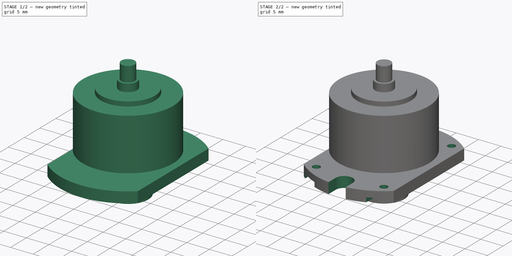
[diagram: build sequence overview — one tinted view per stage of 2, left to right]
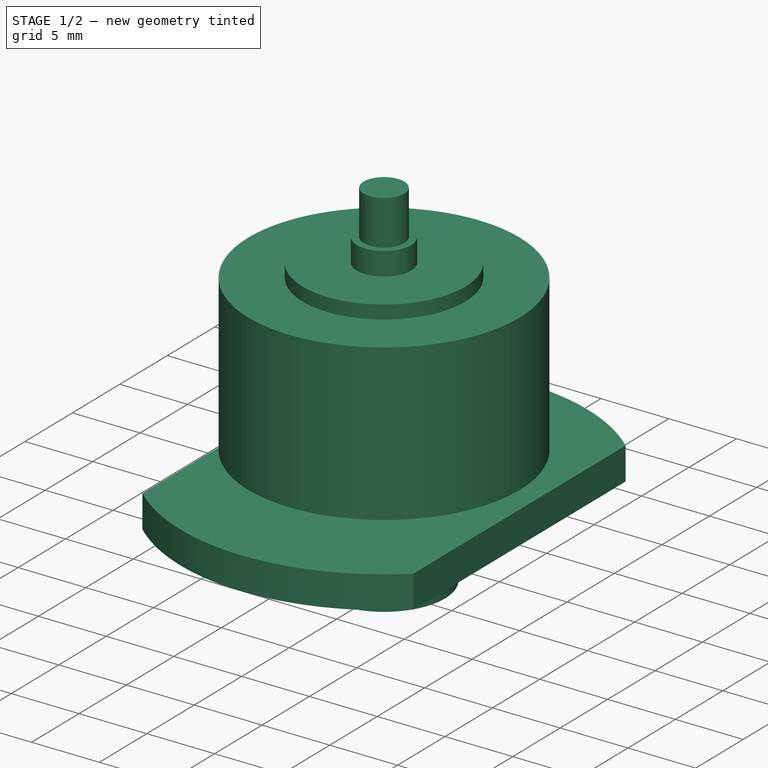
[diagram: stage 1 of 2 — iso view after this stage's code; geometry added in this stage tinted green]
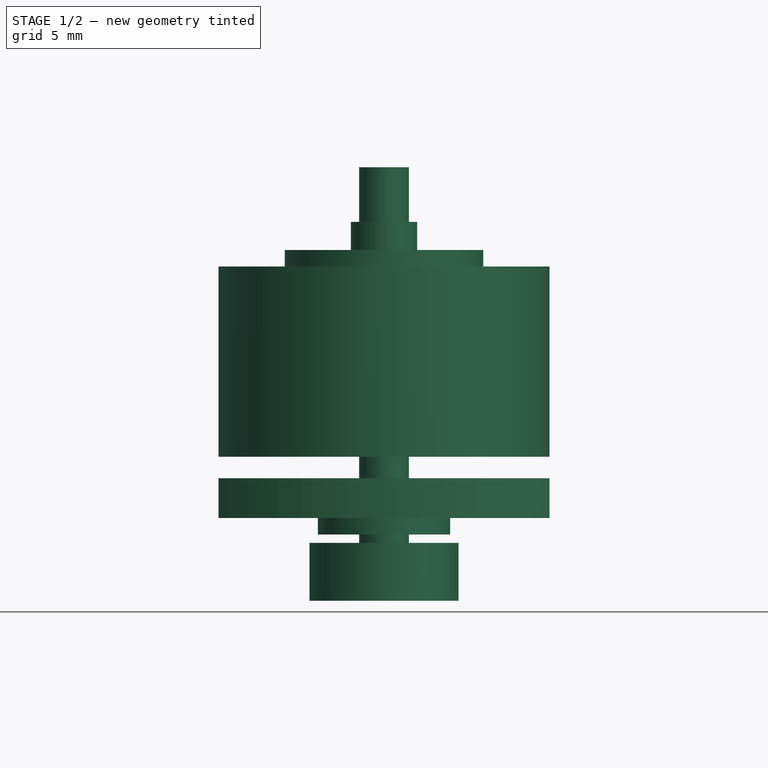
[diagram: stage 1 of 2 — front view after this stage's code; geometry added in this stage tinted green]
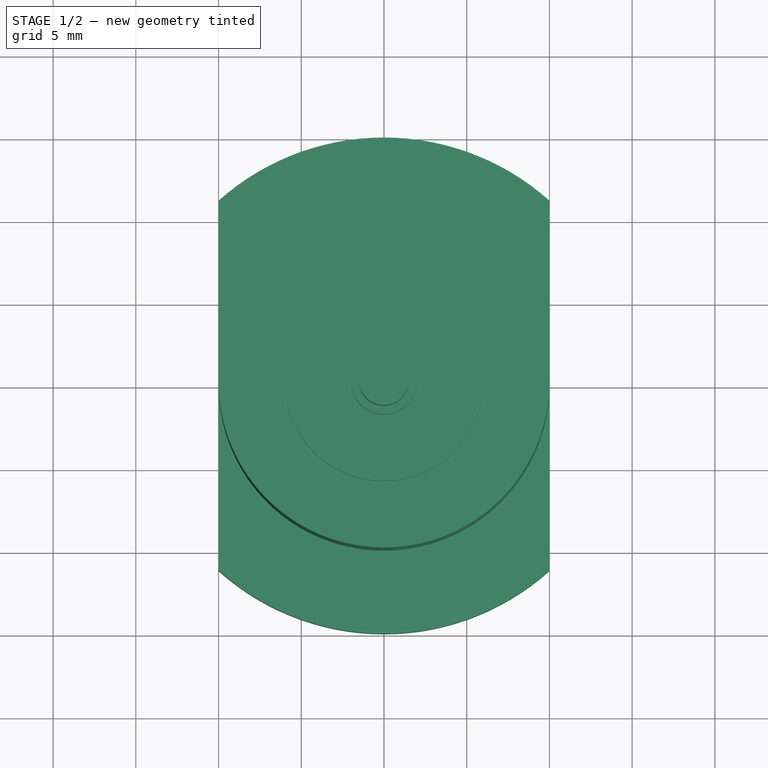
[diagram: stage 1 of 2 — top view after this stage's code; geometry added in this stage tinted green]
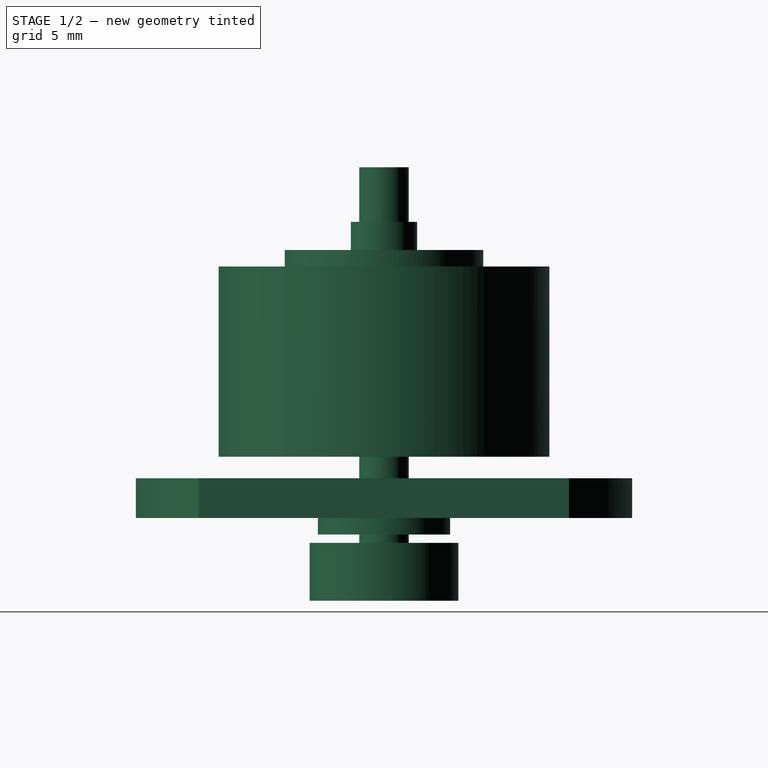
[diagram: stage 1 of 2 — right view after this stage's code; geometry added in this stage tinted green]
FCSTD DOCUMENT  (FreeCAD 0.20R26155 (Git))
Label: BLDC_aliexpress_1
License: All rights reserved
LicenseURL: http://en.wikipedia.org/wiki/All_rights_reserved
objects: Sketcher::SketchObject×4, PartDesign::Pocket×3, PartDesign::Revolution×1, PartDesign::Body×1
note: 13 computed .brp shape members not serialized (recipe doc carries the construction recipe); baked Part::Feature solids carry a one-line shape summary decoded from their .brp

FEATURE [Sketcher::SketchObject] Sketch
  FullyConstrained = true
  MapMode = 5
  Placement = pos=(0,0,0) rot=(1,0,0;1.5708rad)
  Support = -> [XZ_Plane]
  sketch-geometry (20):
    g0: LineSegment StartX=0 StartY=0 StartZ=0 EndX=4.5 EndY=0 EndZ=0
    g1: LineSegment StartX=4.5 StartY=0 StartZ=0 EndX=4.5 EndY=3.5 EndZ=0
    g2: LineSegment StartX=4.5 StartY=3.5 StartZ=0 EndX=1.5 EndY=3.5 EndZ=0
    g3: LineSegment StartX=1.5 StartY=3.5 StartZ=0 EndX=1.5 EndY=4 EndZ=0
    g4: LineSegment StartX=1.5 StartY=4 StartZ=0 EndX=4 EndY=4 EndZ=0
    g5: LineSegment StartX=4 StartY=4 StartZ=0 EndX=4 EndY=5 EndZ=0
    g6: LineSegment StartX=4 StartY=5 StartZ=0 EndX=15 EndY=5 EndZ=0
    g7: LineSegment StartX=15 StartY=5 StartZ=0 EndX=15 EndY=7.4 EndZ=0
    g8: LineSegment StartX=15 StartY=7.4 StartZ=0 EndX=1.5 EndY=7.4 EndZ=0
    g9: LineSegment StartX=1.5 StartY=7.4 StartZ=0 EndX=1.5 EndY=8.7 EndZ=0
    g10: LineSegment StartX=1.5 StartY=8.7 StartZ=0 EndX=10 EndY=8.7 EndZ=0
    g11: LineSegment StartX=10 StartY=8.7 StartZ=0 EndX=10 EndY=20.2 EndZ=0
    g12: LineSegment StartX=10 StartY=20.2 StartZ=0 EndX=6 EndY=20.2 EndZ=0
    g13: LineSegment StartX=6 StartY=20.2 StartZ=0 EndX=6 EndY=21.2 EndZ=0
    g14: LineSegment StartX=6 StartY=21.2 StartZ=0 EndX=2 EndY=21.2 EndZ=0
    g15: LineSegment StartX=2 StartY=21.2 StartZ=0 EndX=2 EndY=22.9 EndZ=0
    g16: LineSegment StartX=2 StartY=22.9 StartZ=0 EndX=1.5 EndY=22.9 EndZ=0
    g17: LineSegment StartX=1.5 StartY=22.9 StartZ=0 EndX=1.5 EndY=26.2 EndZ=0
    g18: LineSegment StartX=0 StartY=26.2 StartZ=0 EndX=1.5 EndY=26.2 EndZ=0
    g19: LineSegment StartX=0 StartY=26.2 StartZ=0 EndX=0 EndY=0 EndZ=0
  constraints (59):
    c: Coincident(g0,g-1)
    c: PointOnObject(g0,g-1)
    c: DistanceX(g0,g0) = 4.5
    c: Coincident(g1,g0)
    c: Vertical(g1)
    c: Coincident(g2,g1)
    c: Horizontal(g2)
    c: DistanceY(g1,g1) = 3.5
    c: DistanceX(g0,g2) = 1.5
    c: Coincident(g3,g2)
    c: Vertical(g3)
    c: Coincident(g4,g3)
    c: Horizontal(g4)
    c: Coincident(g5,g4)
    c: Vertical(g5)
    c: Coincident(g6,g5)
    c: Horizontal(g6)
    c: DistanceY(g0,g5) = 5
    c: DistanceX(g0,g4) = 4
    c: DistanceX(g0,g6) = 15
    c: DistanceY(g3,g3) = 0.5
    c: Coincident(g7,g6)
    c: Vertical(g7)
    c: Coincident(g8,g7)
    c: Horizontal(g8)
    c: Coincident(g9,g8)
    c: Vertical(g9)
    c: Coincident(g10,g9)
    c: Horizontal(g10)
    c: DistanceY(g7,g7) = 2.4
    c: DistanceX(g0,g8) = 1.5
    c: DistanceX(g0,g10) = 10
    c: Coincident(g11,g10)
    c: Vertical(g11)
    c: Coincident(g12,g11)
    c: Horizontal(g12)
    c: Coincident(g13,g12)
    c: Vertical(g13)
    c: Coincident(g14,g13)
    c: Horizontal(g14)
    c: Coincident(g15,g14)
    c: Vertical(g15)
    c: Coincident(g16,g15)
    c: Horizontal(g16)
    c: Coincident(g17,g16)
    c: Vertical(g17)
    c: PointOnObject(g18,g-2)
    c: Coincident(g18,g17)
    c: Horizontal(g18)
    c: DistanceY(g11,g11) = 11.5
    c: DistanceX(g18,g18) = 1.5
    c: DistanceX(g18,g15) = 2
    c: DistanceX(g18,g13) = 6
    c: DistanceY(g0,g18) = 26.2
    c: DistanceY(g17,g17) = 3.3
    c: DistanceY(g14,g17) = 5
    c: DistanceY(g13,g13) = 1
    c: Coincident(g19,g18)
    c: Coincident(g19,g0)
FEATURE [PartDesign::Revolution] Revolution
  Angle = 360
  Axis = (0,2e-16,1)
  Base = (0,0,0)
  Placement = pos=(0,0,0) rot=(1,0,0;1.5708rad)
  Profile = -> Sketch
  ReferenceAxis = -> Sketch [V_Axis]
  Reversed = true
FEATURE [Sketcher::SketchObject] Sketch001
  FullyConstrained = false
  MapMode = 5
  Placement = pos=(0,4.9e-15,7.4) rot=(0,0,1;3.14159rad)
  Support = -> [Revolution]
  sketch-geometry (10):
    g0: LineSegment StartX=-24.8303 StartY=18.1956 StartZ=0 EndX=-10 EndY=18.1956 EndZ=0
    g1: LineSegment StartX=-10 StartY=18.1956 StartZ=0 EndX=-10 EndY=-19.6989 EndZ=0
    g2: LineSegment StartX=-10 StartY=-19.6989 StartZ=0 EndX=-24.8303 EndY=-19.6989 EndZ=0
    g3: LineSegment StartX=-24.8303 StartY=-19.6989 StartZ=0 EndX=-24.8303 EndY=18.1956 EndZ=0
    g4: LineSegment StartX=21.332 StartY=18.1956 StartZ=0 EndX=10 EndY=18.1956 EndZ=0
    g5: LineSegment StartX=10 StartY=18.1956 StartZ=0 EndX=10 EndY=-19.9285 EndZ=0
    g6: LineSegment StartX=10 StartY=-19.9285 StartZ=0 EndX=21.332 EndY=-19.9285 EndZ=0
    g7: LineSegment StartX=21.332 StartY=-19.9285 StartZ=0 EndX=21.332 EndY=18.1956 EndZ=0
    g8: LineSegment StartX=-10 StartY=18.1956 StartZ=0 EndX=10 EndY=18.1956 EndZ=0
    g9: GeomPoint X=0 Y=18.1956 Z=0
  constraints (22):
    c: Coincident(g0,g1)
    c: Coincident(g1,g2)
    c: Coincident(g2,g3)
    c: Coincident(g3,g0)
    c: Horizontal(g0)
    c: Horizontal(g2)
    c: Vertical(g1)
    c: Vertical(g3)
    c: Coincident(g4,g5)
    c: Coincident(g5,g6)
    c: Coincident(g6,g7)
    c: Coincident(g7,g4)
    c: Horizontal(g4)
    c: Horizontal(g6)
    c: Vertical(g5)
    c: Vertical(g7)
    c: DistanceX(g0,g4) = 20
    c: Coincident(g8,g0)
    c: Coincident(g8,g4)
    c: Horizontal(g8)
    c: Symmetric(g8,g8,g9)
    c: PointOnObject(g9,g-2)
FEATURE [PartDesign::Pocket] Pocket
  BaseFeature = -> Revolution
  Length = 5
  Length2 = 100
  Placement = pos=(0,0,0) rot=(1,0,0;1.5708rad)
  Profile = -> Sketch001
  Type = 1
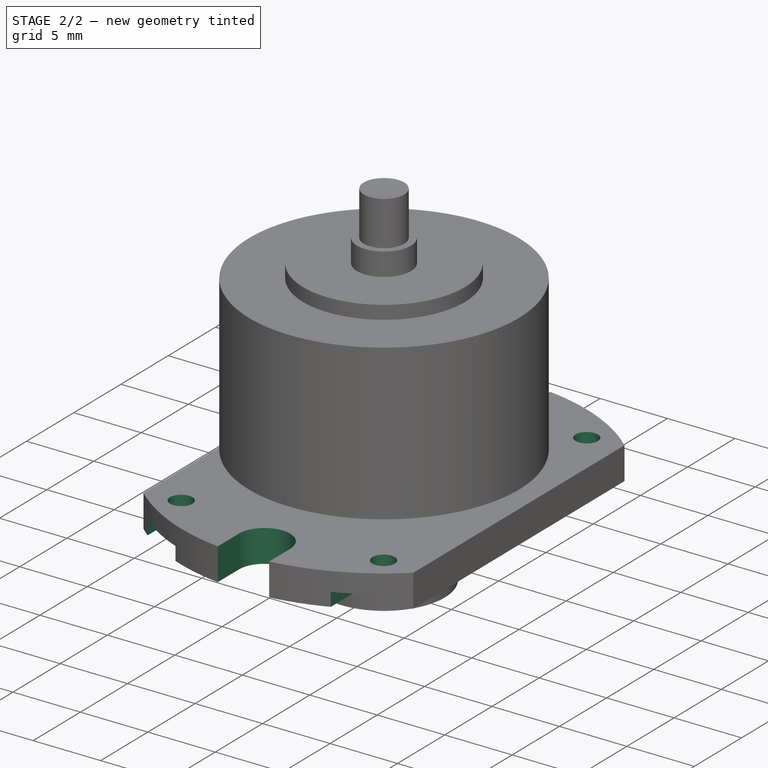
[diagram: stage 2 of 2 — iso view after this stage's code; geometry added in this stage tinted green]
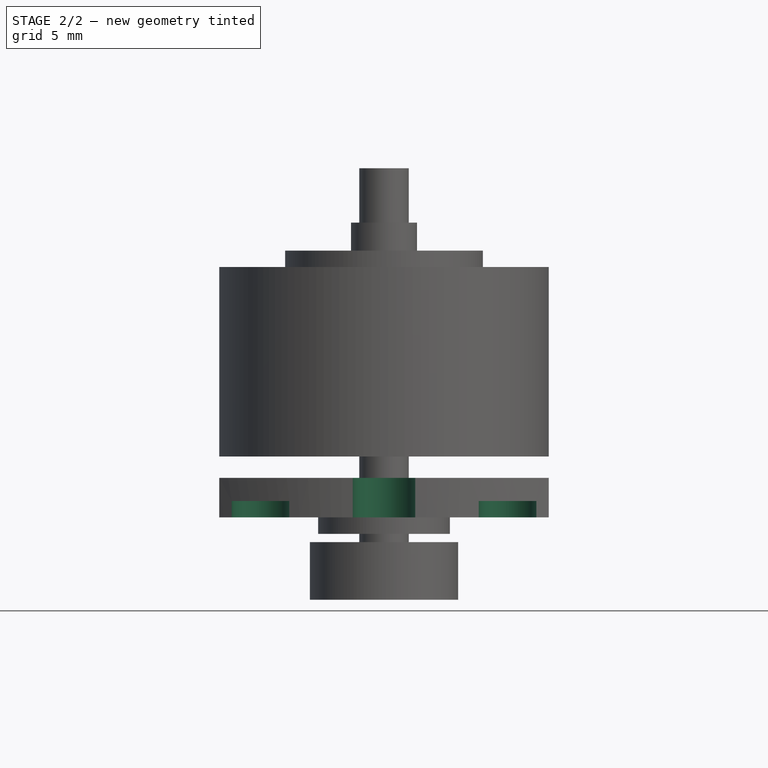
[diagram: stage 2 of 2 — front view after this stage's code; geometry added in this stage tinted green]
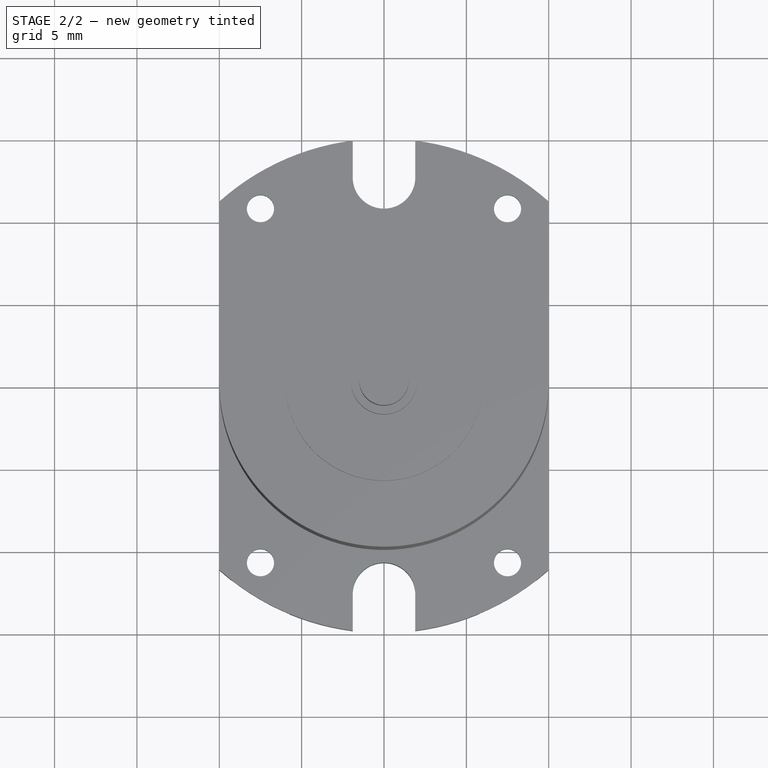
[diagram: stage 2 of 2 — top view after this stage's code; geometry added in this stage tinted green]
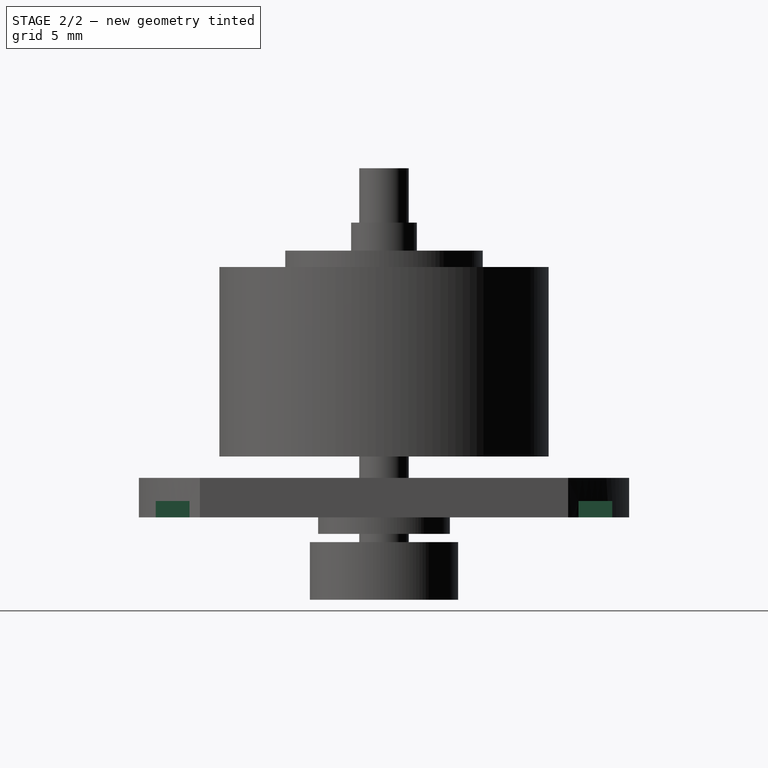
[diagram: stage 2 of 2 — right view after this stage's code; geometry added in this stage tinted green]
FEATURE [Sketcher::SketchObject] Sketch002
  FullyConstrained = false
  MapMode = 5
  Placement = pos=(0,8.2e-15,7.4) rot=(0,0,1;3.14159rad)
  Support = -> [Pocket]
  sketch-geometry (16):
    g0: LineSegment StartX=-7.5 StartY=10.75 StartZ=0 EndX=7.5 EndY=10.75 EndZ=0
    g1: LineSegment StartX=7.5 StartY=10.75 StartZ=0 EndX=7.5 EndY=-10.75 EndZ=0
    g2: LineSegment StartX=7.5 StartY=-10.75 StartZ=0 EndX=-7.5 EndY=-10.75 EndZ=0
    g3: LineSegment StartX=-7.5 StartY=-10.75 StartZ=0 EndX=-7.5 EndY=10.75 EndZ=0
    g4: Circle CenterX=-7.5 CenterY=10.75 CenterZ=0 NormalX=0 NormalY=0 NormalZ=1 AngleXU=0 Radius=0.825
    g5: Circle CenterX=7.5 CenterY=10.75 CenterZ=0 NormalX=0 NormalY=0 NormalZ=1 AngleXU=0 Radius=0.825
    g6: Circle CenterX=7.5 CenterY=-10.75 CenterZ=0 NormalX=0 NormalY=0 NormalZ=1 AngleXU=0 Radius=0.825
    g7: Circle CenterX=-7.5 CenterY=-10.75 CenterZ=0 NormalX=0 NormalY=0 NormalZ=1 AngleXU=0 Radius=0.825
    g8: ArcOfCircle CenterX=0 CenterY=17.2554 CenterZ=0 NormalX=0 NormalY=0 NormalZ=1 AngleXU=0 Radius=1.9 StartAngle=7e-16 EndAngle=3.14159
    g9: ArcOfCircle CenterX=0 CenterY=12.65 CenterZ=0 NormalX=0 NormalY=0 NormalZ=1 AngleXU=0 Radius=1.9 StartAngle=3.14159 EndAngle=6.28319
    g10: LineSegment StartX=-1.9 StartY=17.2554 StartZ=0 EndX=-1.9 EndY=12.65 EndZ=0
    g11: LineSegment StartX=1.9 StartY=12.65 StartZ=0 EndX=1.9 EndY=17.2554 EndZ=0
    g12: ArcOfCircle CenterX=0 CenterY=-16.2477 CenterZ=0 NormalX=0 NormalY=0 NormalZ=1 AngleXU=0 Radius=1.9 StartAngle=3.14159 EndAngle=6.28319
    g13: ArcOfCircle CenterX=0 CenterY=-12.65 CenterZ=0 NormalX=0 NormalY=0 NormalZ=1 AngleXU=0 Radius=1.9 StartAngle=0 EndAngle=3.14159
    g14: LineSegment StartX=1.9 StartY=-16.2477 StartZ=0 EndX=1.9 EndY=-12.65 EndZ=0
    g15: LineSegment StartX=-1.9 StartY=-12.65 StartZ=0 EndX=-1.9 EndY=-16.2477 EndZ=0
  constraints (36):
    c: Coincident(g0,g1)
    c: Coincident(g1,g2)
    c: Coincident(g2,g3)
    c: Coincident(g3,g0)
    c: Horizontal(g2)
    c: Vertical(g3)
    c: Symmetric(g0,g0,g-2)
    c: Symmetric(g1,g0,g-1)
    c: DistanceX(g2,g2) = 15
    c: DistanceY(g1,g1) = 21.5
    c: Coincident(g4,g0)
    c: Coincident(g5,g0)
    c: Coincident(g6,g1)
    c: Coincident(g7,g2)
    c: Equal(g7,g6)
    c: Equal(g6,g5)
    c: Equal(g5,g4)
    c: Diameter(g4) = 1.65
    c: Tangent(g8,g10) = -1.5708
    c: Tangent(g10,g9) = -1.5708
    c: Tangent(g9,g11) = -1.5708
    c: Tangent(g11,g8) = -1.5708
    c: Equal(g8,g9)
    c: PointOnObject(g8,g-2)
    c: PointOnObject(g9,g-2)
    c: Tangent(g12,g14) = -1.5708
    c: Tangent(g14,g13) = -1.5708
    c: Tangent(g13,g15) = -1.5708
    c: Tangent(g15,g12) = -1.5708
    c: Equal(g12,g13)
    c: PointOnObject(g12,g-2)
    c: PointOnObject(g13,g-2)
    c: Equal(g8,g12)
    c: Diameter(g8) = 3.8
    c: Tangent(g13,g2)
    c: Tangent(g9,g0)
FEATURE [PartDesign::Pocket] Pocket001
  BaseFeature = -> Pocket
  Length = 5
  Length2 = 100
  Placement = pos=(0,0,0) rot=(1,0,0;1.5708rad)
  Profile = -> Sketch002
  Type = 1
FEATURE [Sketcher::SketchObject] Sketch003
  ExternalGeometry = -> [Pocket001]
  FullyConstrained = false
  MapMode = 5
  Placement = pos=(0,7.8e-15,5) rot=(1,0,0;3.14159rad)
  Support = -> [Pocket001]
  sketch-geometry (20):
    g0: LineSegment StartX=-7.5 StartY=16.9784 StartZ=0 EndX=7.5 EndY=16.9784 EndZ=0
    g1: LineSegment StartX=7.5 StartY=16.9784 StartZ=0 EndX=7.5 EndY=-17.4394 EndZ=0
    g2: LineSegment StartX=7.5 StartY=-17.4394 StartZ=0 EndX=-7.5 EndY=-17.4394 EndZ=0
    g3: LineSegment StartX=-7.5 StartY=-17.4394 StartZ=0 EndX=-7.5 EndY=16.9784 EndZ=0
    g4: ArcOfCircle CenterX=-7.5 CenterY=14.8969 CenterZ=0 NormalX=0 NormalY=0 NormalZ=1 AngleXU=0 Radius=1.75 StartAngle=0 EndAngle=3.14159
    g5: ArcOfCircle CenterX=-7.5 CenterY=10.75 CenterZ=0 NormalX=0 NormalY=0 NormalZ=1 AngleXU=0 Radius=1.75 StartAngle=3.14159 EndAngle=6.28319
    g6: LineSegment StartX=-9.25 StartY=14.8969 StartZ=0 EndX=-9.25 EndY=10.75 EndZ=0
    g7: LineSegment StartX=-5.75 StartY=10.75 StartZ=0 EndX=-5.75 EndY=14.8969 EndZ=0
    g8: ArcOfCircle CenterX=7.5 CenterY=14.4795 CenterZ=0 NormalX=0 NormalY=0 NormalZ=1 AngleXU=0 Radius=1.75 StartAngle=0 EndAngle=3.14159
    g9: ArcOfCircle CenterX=7.5 CenterY=10.75 CenterZ=0 NormalX=0 NormalY=0 NormalZ=1 AngleXU=0 Radius=1.75 StartAngle=3.14159 EndAngle=6.28319
    g10: LineSegment StartX=5.75 StartY=14.4795 StartZ=0 EndX=5.75 EndY=10.75 EndZ=0
    g11: LineSegment StartX=9.25 StartY=10.75 StartZ=0 EndX=9.25 EndY=14.4795 EndZ=0
    g12: ArcOfCircle CenterX=7.5 CenterY=-14.2699 CenterZ=0 NormalX=0 NormalY=0 NormalZ=1 AngleXU=0 Radius=1.75 StartAngle=3.14159 EndAngle=6.28319
    g13: ArcOfCircle CenterX=7.5 CenterY=-10.75 CenterZ=0 NormalX=0 NormalY=0 NormalZ=1 AngleXU=0 Radius=1.75 StartAngle=0 EndAngle=3.14159
    g14: LineSegment StartX=9.25 StartY=-14.2699 StartZ=0 EndX=9.25 EndY=-10.75 EndZ=0
    g15: LineSegment StartX=5.75 StartY=-10.75 StartZ=0 EndX=5.75 EndY=-14.2699 EndZ=0
    g16: ArcOfCircle CenterX=-7.5 CenterY=-14.0486 CenterZ=0 NormalX=0 NormalY=0 NormalZ=1 AngleXU=0 Radius=1.75 StartAngle=3.14159 EndAngle=6.28319
    g17: ArcOfCircle CenterX=-7.5 CenterY=-10.75 CenterZ=0 NormalX=0 NormalY=0 NormalZ=1 AngleXU=0 Radius=1.75 StartAngle=1e-16 EndAngle=3.14159
    g18: LineSegment StartX=-5.75 StartY=-14.0486 StartZ=0 EndX=-5.75 EndY=-10.75 EndZ=0
    g19: LineSegment StartX=-9.25 StartY=-10.75 StartZ=0 EndX=-9.25 EndY=-14.0486 EndZ=0
  constraints (42):
    c: Coincident(g0,g1)
    c: Coincident(g1,g2)
    c: Coincident(g2,g3)
    c: Coincident(g3,g0)
    c: Horizontal(g0)
    c: Horizontal(g2)
    c: Vertical(g1)
    c: Vertical(g3)
    c: PointOnObject(g-4,g1)
    c: PointOnObject(g-3,g3)
    c: Tangent(g4,g6) = -1.5708
    c: Tangent(g6,g5) = -1.5708
    c: Tangent(g5,g7) = -1.5708
    c: Tangent(g7,g4) = -1.5708
    c: Equal(g4,g5)
    c: PointOnObject(g4,g3)
    c: Coincident(g5,g-3)
    c: Tangent(g8,g10) = -1.5708
    c: Tangent(g10,g9) = -1.5708
    c: Tangent(g9,g11) = -1.5708
    c: Tangent(g11,g8) = -1.5708
    c: Equal(g8,g9)
    c: PointOnObject(g8,g1)
    c: Coincident(g9,g-4)
    c: Tangent(g12,g14) = -1.5708
    c: Tangent(g14,g13) = -1.5708
    c: Tangent(g13,g15) = -1.5708
    c: Tangent(g15,g12) = -1.5708
    c: Equal(g12,g13)
    c: PointOnObject(g12,g1)
    c: Coincident(g13,g-6)
    c: Tangent(g16,g18) = -1.5708
    c: Tangent(g18,g17) = -1.5708
    c: Tangent(g17,g19) = -1.5708
    c: Tangent(g19,g16) = -1.5708
    c: Equal(g16,g17)
    c: PointOnObject(g16,g3)
    c: Coincident(g17,g-5)
    c: Equal(g16,g12)
    c: Equal(g12,g8)
    c: Equal(g8,g4)
    c: Diameter(g4) = 3.5
FEATURE [PartDesign::Pocket] Pocket002
  BaseFeature = -> Pocket001
  Length = 1
  Length2 = 100
  Placement = pos=(0,0,0) rot=(1,0,0;1.5708rad)
  Profile = -> Sketch003
  Type = 0
FEATURE [PartDesign::Body] Body
  Group = -> [Sketch,Revolution,Sketch001,Pocket,Sketch002,Pocket001,Sketch003,Pocket002]
  Origin = -> Origin
  Tip = -> Pocket002
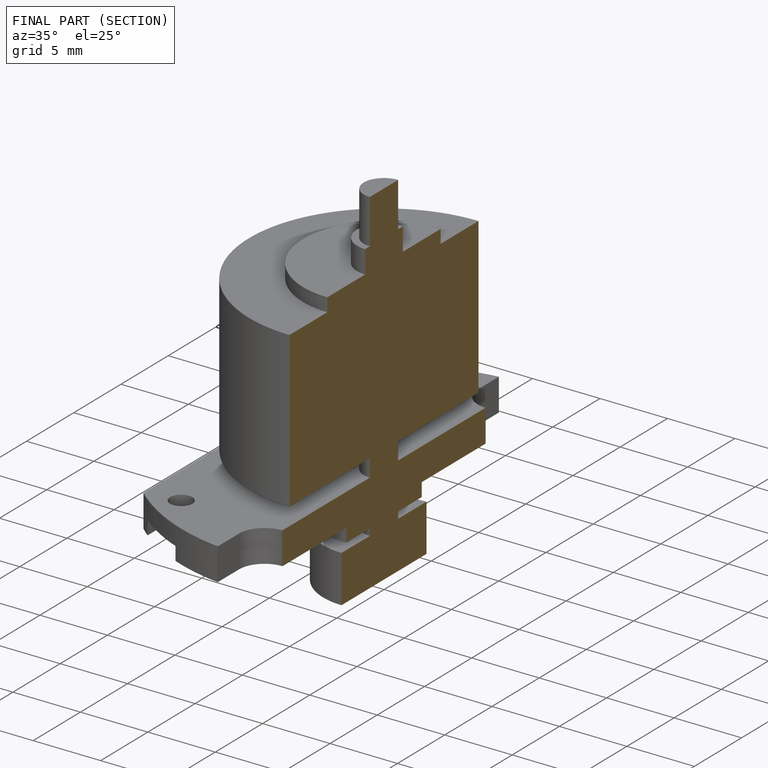
[diagram: finished part — half-section view (interior)]
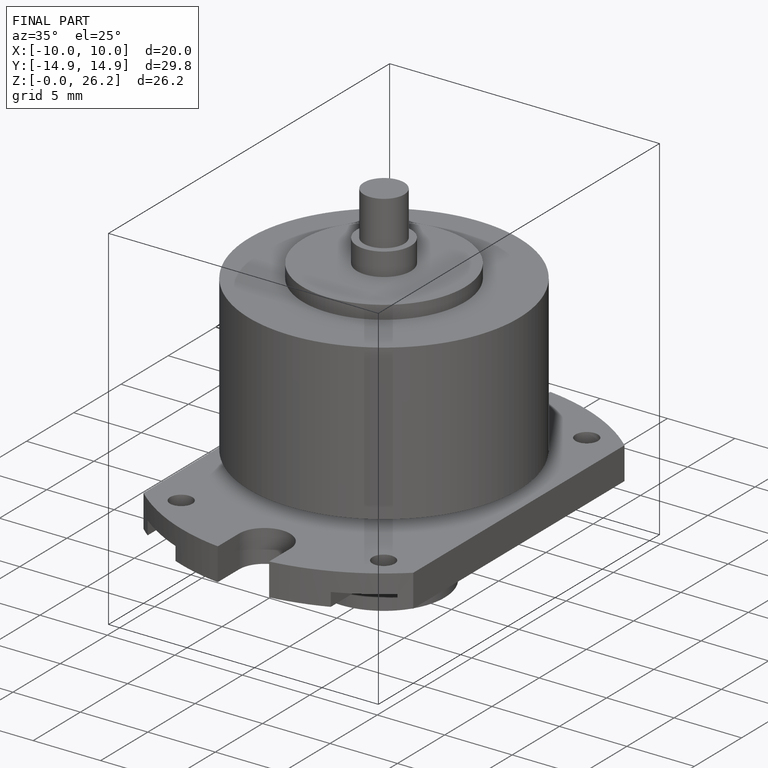
[diagram: finished part — iso view with bounding-box wireframe]
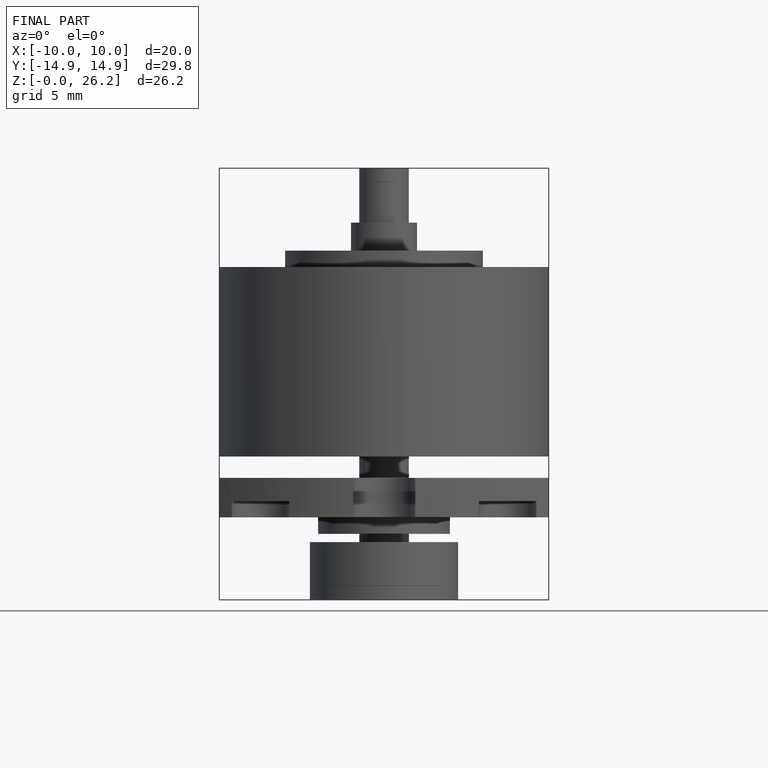
[diagram: finished part — front view with bounding-box wireframe]
